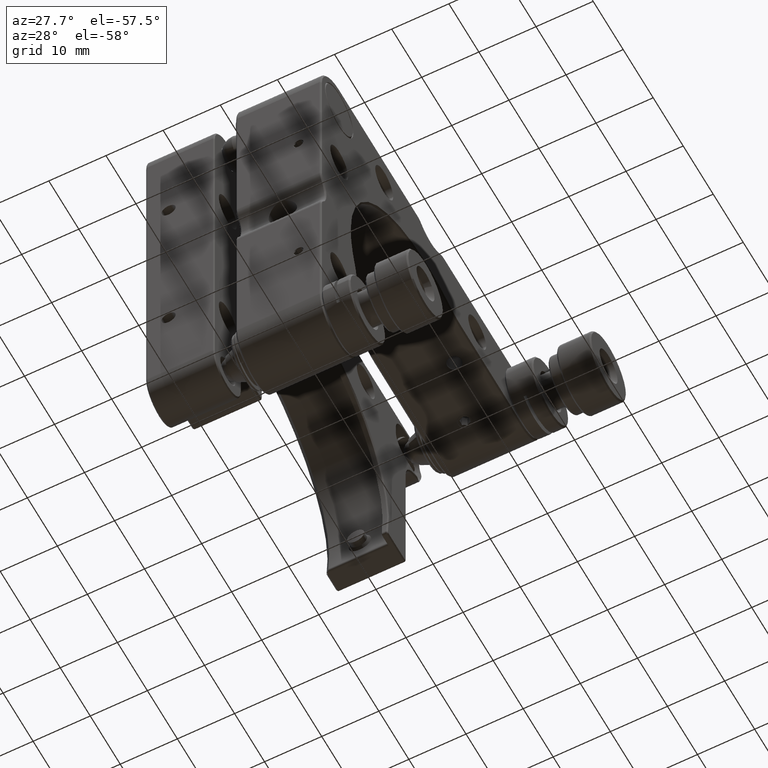
[diagram: clean part render]
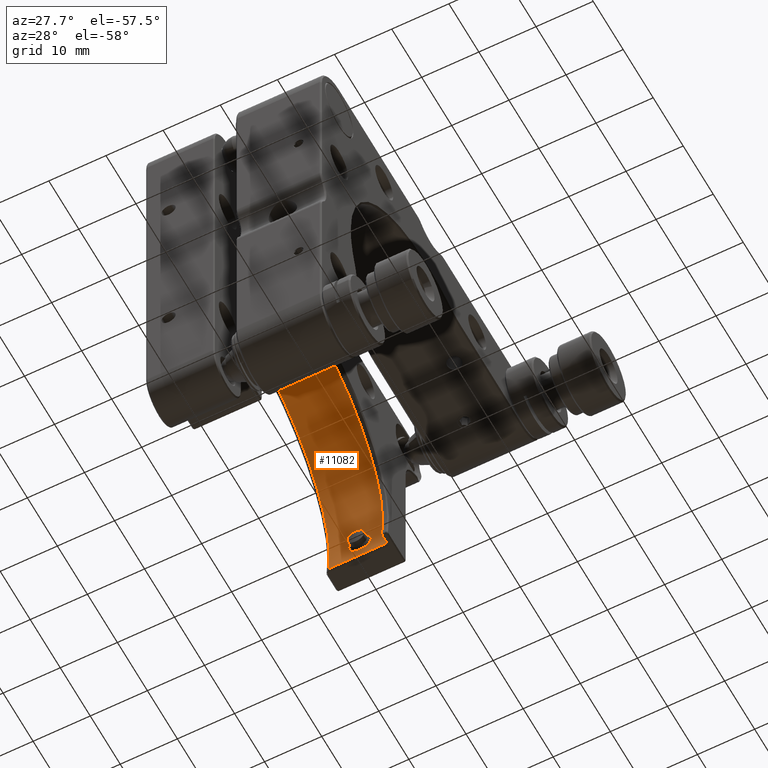
[diagram: same view with one face highlighted and labeled with its STEP entity id]
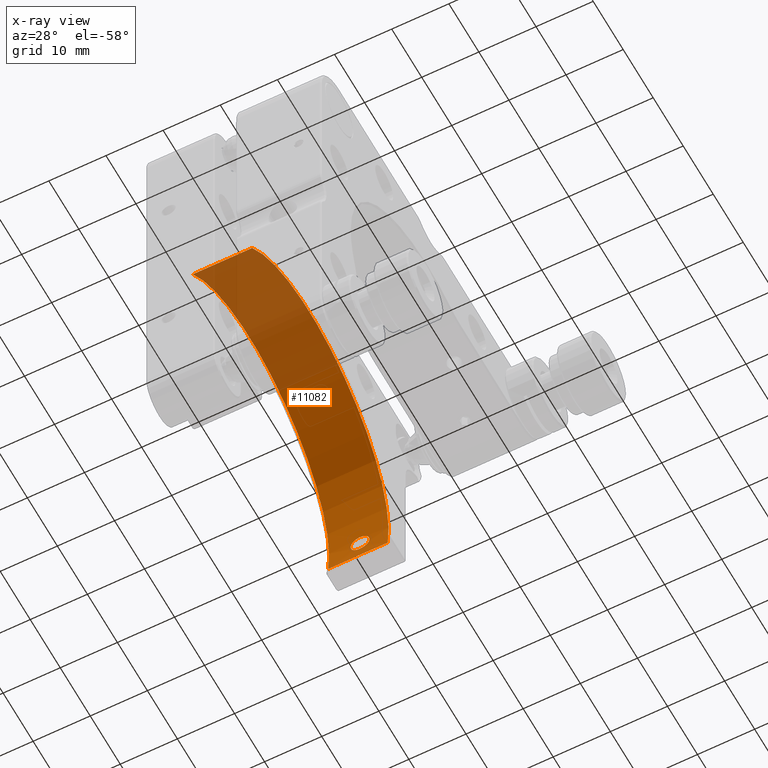
[diagram: x-ray of the same camera — body ghosted, the highlighted face saturated]
A machine part, auxiliary view. The second image highlights one B-rep face of the part: STEP entity #11082.
The next image is the same camera in x-ray: the body ghosted, the highlighted face saturated — about 44% of this face is hidden behind the body in this view.
In plain terms, the highlighted cylindrical surface (partial cylindrical patch) has radius 26.4 mm, axis along (-1, -0, 0).
Its self-contained STEP definition (entity closure, byte-faithful):
#111 = LINE ( 'NONE', #4865, #4005 ) ;
#604 = CARTESIAN_POINT ( 'NONE',  ( -9.975619322914191400, 23.63131567045446957, -14.94999999999997442 ) ) ;
#799 = CARTESIAN_POINT ( 'NONE',  ( -9.149012299571470663, 23.64412637717673249, -18.03207836871354530 ) ) ;
#873 = CARTESIAN_POINT ( 'NONE',  ( -8.325696425390367139, 23.68292380414235510, -16.81588624721907976 ) ) ;
#963 = CARTESIAN_POINT ( 'NONE',  ( -4.975619322914199394, -21.79889097676029763, 1.644017122345027504 ) ) ;
#999 = DIRECTION ( 'NONE',  ( 0.000000000000000000, 3.942553354492743531E-16, -1.000000000000000000 ) ) ;
#1014 = CYLINDRICAL_SURFACE ( 'NONE', #7868, 26.39999999999999858 ) ;
#1026 = CARTESIAN_POINT ( 'NONE',  ( -8.378460413726253719, 23.67967035801392583, -16.17195062225247426 ) ) ;
#1334 = CARTESIAN_POINT ( 'NONE',  ( -11.45897604510176926, 23.67300519327690367, -17.33066328488663999 ) ) ;
#1395 = ORIENTED_EDGE ( 'NONE', *, *, #1597, .F. ) ;
#1479 = CARTESIAN_POINT ( 'NONE',  ( -11.40724217233004723, 23.67011223706544953, -15.77259913195546304 ) ) ;
#1597 = EDGE_CURVE ( 'NONE', #11836, #12087, #111, .T. ) ;
#2092 = CARTESIAN_POINT ( 'NONE',  ( -9.244245248217543676, 23.64127492671097386, -15.11699615359621163 ) ) ;
#2164 = CARTESIAN_POINT ( 'NONE',  ( -8.969098574216715747, 23.65038224543394207, -15.28814302225300992 ) ) ;
#2427 = CARTESIAN_POINT ( 'NONE',  ( -15.37561932291420419, 23.40399622387030121, -20.42750929368026291 ) ) ;
#2483 = CARTESIAN_POINT ( 'NONE',  ( -10.98931437783780574, 23.65036978683627567, -15.28045596671979212 ) ) ;
#3017 = CARTESIAN_POINT ( 'NONE',  ( -11.28884674039559677, 23.66395410675196942, -17.60475920466861766 ) ) ;
#3026 = CARTESIAN_POINT ( 'NONE',  ( -8.336316506696565654, 23.68225382966175019, -16.38359961245551588 ) ) ;
#3133 = B_SPLINE_CURVE_WITH_KNOTS ( 'NONE', 3,
 ( #8406, #7327, #14274, #13109, #2483, #3852, #12035, #1479, #8549, #5089, #13253, #6169, #9794, #11892, #14492, #1334, #7866, #3017, #6486, #8799, #10185, #4252, #6629, #7559 ),
 .UNSPECIFIED., .F., .F.,
 ( 4, 2, 2, 2, 2, 2, 2, 2, 2, 2, 2, 4 ),
 ( 0.005159909450215059527, 0.005804750332739264974, 0.006449591215263470421, 0.006772011656525573145, 0.007094432097787680205, 0.007416852539049787266, 0.007739272980311894326, 0.008384113862836118855, 0.008706534304098227650, 0.009028954745360334710, 0.009673795627884559239, 0.01031863651040878377 ),
 .UNSPECIFIED. ) ;
#3149 = DIRECTION ( 'NONE',  ( 1.000000000000000000, -0.000000000000000000, -0.000000000000000000 ) ) ;
#3247 = CARTESIAN_POINT ( 'NONE',  ( -4.975619322914199394, -2.717071376953200001, -16.59999999999998366 ) ) ;
#3334 = CARTESIAN_POINT ( 'NONE',  ( -9.867918605498310569, 23.63131567045446957, -14.94999999999997087 ) ) ;
#3392 = FACE_OUTER_BOUND ( 'NONE', #10172, .T. ) ;
#3852 = CARTESIAN_POINT ( 'NONE',  ( -11.21763692854627692, 23.66046313061745465, -15.50845943852942455 ) ) ;
#4005 = VECTOR ( 'NONE', #13126, 1000.000000000000000 ) ;
#4057 = DIRECTION ( 'NONE',  ( 1.000000000000000000, 0.000000000000000000, -0.000000000000000000 ) ) ;
#4252 = CARTESIAN_POINT ( 'NONE',  ( -10.41028260383716741, 23.63415388865015387, -18.20615968037290244 ) ) ;
#4331 = CARTESIAN_POINT ( 'NONE',  ( -8.663442711714457900, 23.66390186687205599, -15.59389314508094238 ) ) ;
#4806 = CARTESIAN_POINT ( 'NONE',  ( -15.37561932291420774, -21.79889097676029763, 1.644017122345027504 ) ) ;
#4865 = CARTESIAN_POINT ( 'NONE',  ( -4.975619322914199394, 23.40399622387030476, -20.42750929368026291 ) ) ;
#4921 = ORIENTED_EDGE ( 'NONE', *, *, #8154, .F. ) ;
#5068 = ORIENTED_EDGE ( 'NONE', *, *, #12751, .T. ) ;
#5089 = CARTESIAN_POINT ( 'NONE',  ( -11.54084475295617374, 23.67773339496476481, -16.06685691977899211 ) ) ;
#5489 = CARTESIAN_POINT ( 'NONE',  ( -8.533588882291692101, 23.67061901514274069, -17.43020834771207106 ) ) ;
#5557 = CARTESIAN_POINT ( 'NONE',  ( -9.243781298612439912, 23.64128802305504351, -18.08277151092243784 ) ) ;
#5714 = CARTESIAN_POINT ( 'NONE',  ( -8.885655639657120020, 23.65373828599890871, -15.35647900071996474 ) ) ;
#5936 = CIRCLE ( 'NONE', #14560, 26.39999999999999858 ) ;
#6112 = VERTEX_POINT ( 'NONE', #10000 ) ;
#6169 = CARTESIAN_POINT ( 'NONE',  ( -11.61477329759335220, 23.68224461553770155, -16.38265865959593626 ) ) ;
#6212 = CARTESIAN_POINT ( 'NONE',  ( -4.975619322914199394, 23.40399622387030121, -20.42750929368026291 ) ) ;
#6486 = CARTESIAN_POINT ( 'NONE',  ( -11.21923418647148374, 23.66053850496756894, -17.68972967777632022 ) ) ;
#6568 = CARTESIAN_POINT ( 'NONE',  ( -8.969659548246948333, 23.65035972525230079, -17.91231572303626507 ) ) ;
#6629 = CARTESIAN_POINT ( 'NONE',  ( -10.19366521497073208, 23.63131567045446957, -18.24999999999996803 ) ) ;
#6725 = CARTESIAN_POINT ( 'NONE',  ( -8.492303143176613389, 23.67300296964124939, -15.86927275674946181 ) ) ;
#7147 = VERTEX_POINT ( 'NONE', #11866 ) ;
#7327 = CARTESIAN_POINT ( 'NONE',  ( -10.19097139864196855, 23.63131567045447312, -14.94999999999997620 ) ) ;
#7559 = CARTESIAN_POINT ( 'NONE',  ( -9.975619322914191400, 23.63131567045446602, -18.24999999999996803 ) ) ;
#7732 = CARTESIAN_POINT ( 'NONE',  ( -9.758532272248750417, 23.63199782156812034, -14.96079315314688252 ) ) ;
#7804 = CARTESIAN_POINT ( 'NONE',  ( -9.443604945339806989, 23.63649693293862697, -18.16561775330737660 ) ) ;
#7866 = CARTESIAN_POINT ( 'NONE',  ( -11.40835149321846309, 23.67017290496644577, -17.42546098488445239 ) ) ;
#7868 = AXIS2_PLACEMENT_3D ( 'NONE', #3247, #10483, #12650 ) ;
#7895 = DIRECTION ( 'NONE',  ( 1.000000000000000000, 0.000000000000000000, -0.000000000000000000 ) ) ;
#7956 = CARTESIAN_POINT ( 'NONE',  ( -8.409633387620402800, 23.67777867147951909, -16.06907887256028999 ) ) ;
#8154 = EDGE_CURVE ( 'NONE', #10549, #7147, #9211, .T. ) ;
#8406 = CARTESIAN_POINT ( 'NONE',  ( -9.975619322914191400, 23.63131567045446957, -14.94999999999997442 ) ) ;
#8549 = CARTESIAN_POINT ( 'NONE',  ( -11.45796112220358509, 23.67294805295124505, -15.86730976469101506 ) ) ;
#8588 = VECTOR ( 'NONE', #7895, 1000.000000000000000 ) ;
#8799 = CARTESIAN_POINT ( 'NONE',  ( -10.99103325055022040, 23.65043639416937538, -17.91825238612005577 ) ) ;
#8967 = CARTESIAN_POINT ( 'NONE',  ( -9.444184329374206044, 23.63648502401682094, -15.03418222860131159 ) ) ;
#9035 = CARTESIAN_POINT ( 'NONE',  ( -9.866571388620023697, 23.63131567045447312, -18.24999999999996803 ) ) ;
#9192 = CARTESIAN_POINT ( 'NONE',  ( -9.759351247835498455, 23.63199217487715131, -18.23929596157489996 ) ) ;
#9211 = LINE ( 'NONE', #963, #8588 ) ;
#9634 = AXIS2_PLACEMENT_3D ( 'NONE', #13790, #3149, #999 ) ;
#9794 = CARTESIAN_POINT ( 'NONE',  ( -11.62553012688894150, 23.68292304829705941, -16.48978790560793328 ) ) ;
#10000 = CARTESIAN_POINT ( 'NONE',  ( -9.975619322914191400, 23.63131567045446602, -18.24999999999996803 ) ) ;
#10067 = CARTESIAN_POINT ( 'NONE',  ( -15.37561932291420419, -2.717071376953200001, -16.59999999999998366 ) ) ;
#10172 = EDGE_LOOP ( 'NONE', ( #1395, #5068, #4921, #11312 ) ) ;
#10185 = CARTESIAN_POINT ( 'NONE',  ( -10.80718004122704023, 23.64368798348690603, -18.04124524575012245 ) ) ;
#10363 = ORIENTED_EDGE ( 'NONE', *, *, #14997, .F. ) ;
#10483 = DIRECTION ( 'NONE',  ( -1.000000000000000000, -0.000000000000000000, 0.000000000000000000 ) ) ;
#10549 = VERTEX_POINT ( 'NONE', #4806 ) ;
#10857 = CIRCLE ( 'NONE', #9634, 26.39999999999999858 ) ;
#10923 = DIRECTION ( 'NONE',  ( 0.000000000000000000, 3.942553354492743531E-16, -1.000000000000000000 ) ) ;
#10959 = EDGE_CURVE ( 'NONE', #11862, #6112, #3133, .T. ) ;
#11082 = ADVANCED_FACE ( 'NONE', ( #11649, #3392 ), #1014, .F. ) ;
#11312 = ORIENTED_EDGE ( 'NONE', *, *, #12994, .F. ) ;
#11350 = CARTESIAN_POINT ( 'NONE',  ( -9.547053315513487348, 23.63458871617181600, -15.00298495572603308 ) ) ;
#11573 = CARTESIAN_POINT ( 'NONE',  ( -8.884764224713400438, 23.65377781585788952, -17.84262523388044031 ) ) ;
#11649 = FACE_BOUND ( 'NONE', #13853, .T. ) ;
#11836 = VERTEX_POINT ( 'NONE', #6212 ) ;
#11862 = VERTEX_POINT ( 'NONE', #604 ) ;
#11866 = CARTESIAN_POINT ( 'NONE',  ( -4.975619322914199394, -21.79889097676029408, 1.644017122345027504 ) ) ;
#11892 = CARTESIAN_POINT ( 'NONE',  ( -11.62579607392907732, 23.68293966998158240, -16.81639352509147756 ) ) ;
#12021 = ORIENTED_EDGE ( 'NONE', *, *, #10959, .F. ) ;
#12035 = CARTESIAN_POINT ( 'NONE',  ( -11.28733189619585708, 23.66387828320630859, -15.59324963148492138 ) ) ;
#12087 = VERTEX_POINT ( 'NONE', #2427 ) ;
#12434 = CARTESIAN_POINT ( 'NONE',  ( -9.975619322914191400, 23.63131567045446602, -18.24999999999996803 ) ) ;
#12581 = CARTESIAN_POINT ( 'NONE',  ( -9.975619322914191400, 23.63131567045446957, -14.94999999999997442 ) ) ;
#12650 = DIRECTION ( 'NONE',  ( 0.000000000000000000, 3.942553354492743531E-16, -1.000000000000000000 ) ) ;
#12661 = CARTESIAN_POINT ( 'NONE',  ( -8.543980349099104643, 23.67011361849090534, -15.77267399947274207 ) ) ;
#12751 = EDGE_CURVE ( 'NONE', #11836, #7147, #10857, .T. ) ;
#12994 = EDGE_CURVE ( 'NONE', #12087, #10549, #5936, .T. ) ;
#13109 = CARTESIAN_POINT ( 'NONE',  ( -10.80518845945639761, 23.64362430330409737, -15.15760604864251526 ) ) ;
#13126 = DIRECTION ( 'NONE',  ( -1.000000000000000000, -0.000000000000000000, 0.000000000000000000 ) ) ;
#13253 = CARTESIAN_POINT ( 'NONE',  ( -11.57269983344801467, 23.67966564253098127, -16.17175141117785486 ) ) ;
#13670 = CARTESIAN_POINT ( 'NONE',  ( -8.656507232691470932, 23.66387716409490949, -17.61428426095292110 ) ) ;
#13740 = CARTESIAN_POINT ( 'NONE',  ( -9.548415426131791506, 23.63456768682274500, -18.19736031017049172 ) ) ;
#13790 = CARTESIAN_POINT ( 'NONE',  ( -4.975619322914199394, -2.717071376953200001, -16.59999999999998366 ) ) ;
#13819 = CARTESIAN_POINT ( 'NONE',  ( -8.731640561846697679, 23.66055294000938858, -15.51055879071759236 ) ) ;
#13853 = EDGE_LOOP ( 'NONE', ( #10363, #12021 ) ) ;
#13899 = CARTESIAN_POINT ( 'NONE',  ( -8.369027090763125898, 23.68012338002502659, -17.03308092994796041 ) ) ;
#14274 = CARTESIAN_POINT ( 'NONE',  ( -10.40804462420088328, 23.63411613776851183, -14.99323504456215872 ) ) ;
#14492 = CARTESIAN_POINT ( 'NONE',  ( -11.58308669424808635, 23.68017522604117531, -17.03059569744566559 ) ) ;
#14560 = AXIS2_PLACEMENT_3D ( 'NONE', #10067, #4057, #10923 ) ;
#14822 = CARTESIAN_POINT ( 'NONE',  ( -8.325580929953819265, 23.68293102260666672, -16.49294201741724208 ) ) ;
#14869 = B_SPLINE_CURVE_WITH_KNOTS ( 'NONE', 3,
 ( #12434, #9035, #9192, #13740, #7804, #5557, #799, #6568, #11573, #13670, #5489, #13899, #873, #14822, #3026, #1026, #7956, #6725, #12661, #4331, #13819, #5714, #2164, #15110, #2092, #8967, #11350, #7732, #3334, #12581 ),
 .UNSPECIFIED., .F., .F.,
 ( 4, 2, 2, 2, 2, 2, 2, 2, 2, 2, 2, 2, 2, 2, 4 ),
 ( 0.000000000000000000, 0.0003224943406384424131, 0.0006449886812768848262, 0.0009674830219153274019, 0.001289977362553769652, 0.001934966043830658707, 0.002579954725107547545, 0.002902449065745986434, 0.003224943406384425323, 0.003547437747022864213, 0.003869932087661303102, 0.004192426428299742859, 0.004514920768938181748, 0.004837415109576620638, 0.005159909450215059527 ),
 .UNSPECIFIED. ) ;
#14997 = EDGE_CURVE ( 'NONE', #6112, #11862, #14869, .T. ) ;
#15110 = CARTESIAN_POINT ( 'NONE',  ( -9.147795527392718284, 23.64416567193373808, -15.16865080738820737 ) ) ;